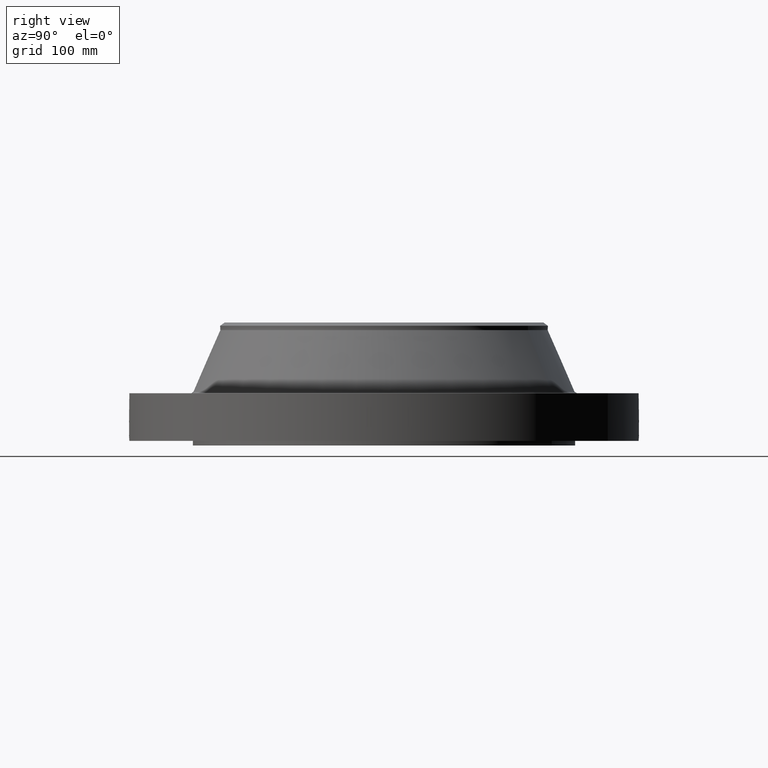
[diagram: clean part render]
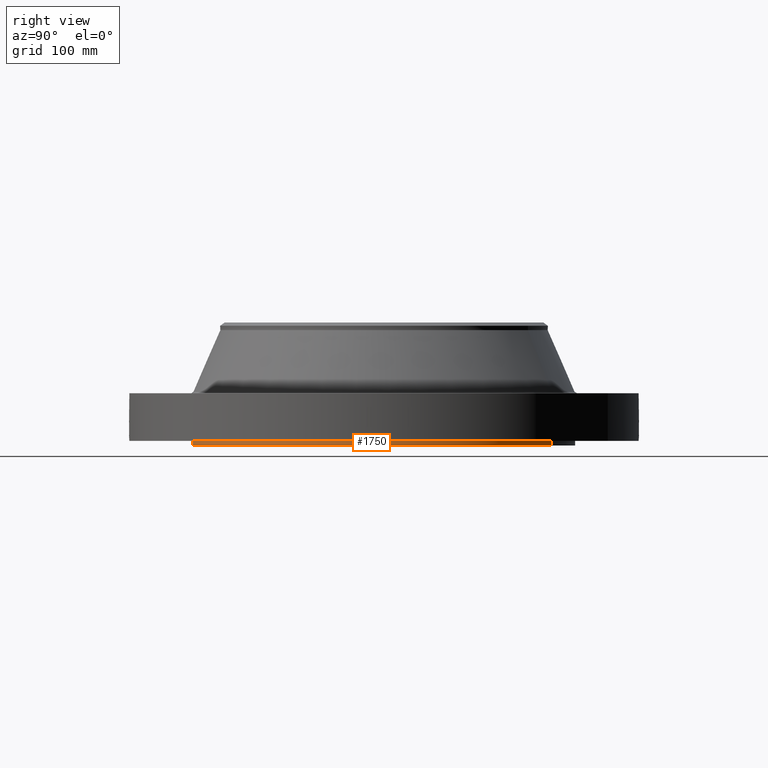
[diagram: same view with one face highlighted and labeled with its STEP entity id]
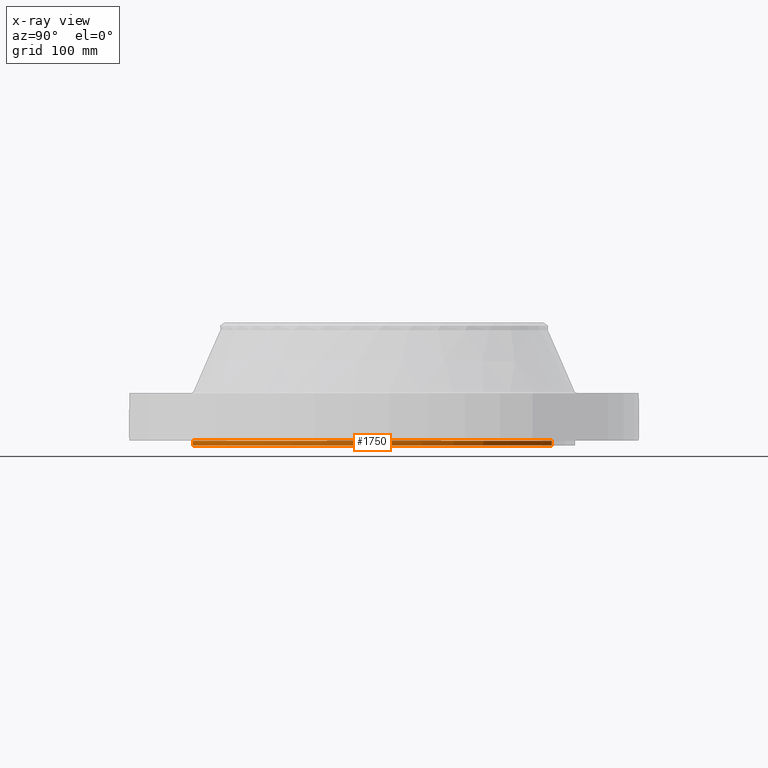
[diagram: x-ray of the same camera — body ghosted, the highlighted face saturated]
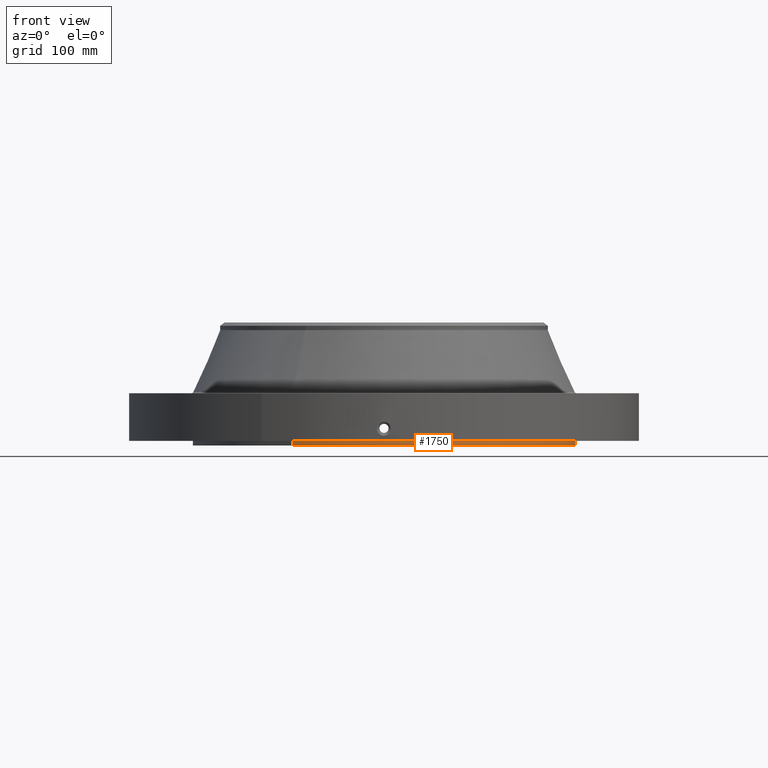
[diagram: same view with one face highlighted and labeled with its STEP entity id]
A machine part, right view. The second image highlights one B-rep face of the part: STEP entity #1750.
The next image is the same camera in x-ray: the body ghosted, the highlighted face saturated — about 0% of this face is hidden behind the body in this view.
A second angle (front view) of the same face is appended — the face is thin or edge-on in the first view.
In plain terms, the highlighted cylindrical surface (partial cylindrical patch) has radius 266.7 mm, axis along (0, 0, -1).
Its self-contained STEP definition (entity closure, byte-faithful):
#250=AXIS2_PLACEMENT_3D('Circle Axis2P3D',#248,#249,$) ;
#1723=AXIS2_PLACEMENT_3D('Cylinder Axis2P3D',#1720,#1721,#1722) ;
#1727=AXIS2_PLACEMENT_3D('Circle Axis2P3D',#1725,#1726,$) ;
#248=CARTESIAN_POINT('Axis2P3D Location',(0.,0.,0.250000000001)) ;
#252=CARTESIAN_POINT('Vertex',(5.03396815536,9.21461689989,0.250000000001)) ;
#254=CARTESIAN_POINT('Vertex',(-5.03396815536,-9.21461689989,0.250000000001)) ;
#1720=CARTESIAN_POINT('Axis2P3D Location',(0.,0.,3.37500000001)) ;
#1725=CARTESIAN_POINT('Axis2P3D Location',(0.,0.,1.1189649382E-015)) ;
#1729=CARTESIAN_POINT('Vertex',(5.03396815536,9.21461689989,1.67844740731E-015)) ;
#1731=CARTESIAN_POINT('Vertex',(-5.03396815536,-9.21461689989,1.67844740731E-015)) ;
#1734=CARTESIAN_POINT('Line Origine',(5.03396815536,9.21461689989,0.125000000001)) ;
#1739=CARTESIAN_POINT('Line Origine',(-5.03396815536,-9.21461689989,0.125000000001)) ;
#249=DIRECTION('Axis2P3D Direction',(0.,0.,-0.0393700787402)) ;
#1721=DIRECTION('Axis2P3D Direction',(0.,0.,-0.0393700787402)) ;
#1722=DIRECTION('Axis2P3D XDirection',(-0.0188750212049,-0.0345504945626,0.)) ;
#1726=DIRECTION('Axis2P3D Direction',(0.,0.,-0.0393700787402)) ;
#1735=DIRECTION('Vector Direction',(0.,0.,-0.0393700787402)) ;
#1740=DIRECTION('Vector Direction',(0.,0.,-0.0393700787402)) ;
#1736=VECTOR('Line Direction',#1735,0.0393700787402) ;
#1741=VECTOR('Line Direction',#1740,0.0393700787402) ;
#1745=ORIENTED_EDGE('',*,*,#1733,.F.) ;
#1746=ORIENTED_EDGE('',*,*,#1738,.T.) ;
#1747=ORIENTED_EDGE('',*,*,#256,.T.) ;
#1748=ORIENTED_EDGE('',*,*,#1743,.F.) ;
#1750=ADVANCED_FACE('PartBody',(#1749),#1724,.T.) ;
#251=CIRCLE('generated circle',#250,10.5) ;
#1728=CIRCLE('generated circle',#1727,10.5) ;
#1724=CYLINDRICAL_SURFACE('generated cylinder',#1723,10.5) ;
#256=EDGE_CURVE('',#253,#255,#251,.T.) ;
#1733=EDGE_CURVE('',#1730,#1732,#1728,.T.) ;
#1738=EDGE_CURVE('',#1730,#253,#1737,.F.) ;
#1743=EDGE_CURVE('',#1732,#255,#1742,.F.) ;
#1744=EDGE_LOOP('',(#1745,#1746,#1747,#1748)) ;
#1749=FACE_OUTER_BOUND('',#1744,.T.) ;
#1737=LINE('Line',#1734,#1736) ;
#1742=LINE('Line',#1739,#1741) ;
#253=VERTEX_POINT('',#252) ;
#255=VERTEX_POINT('',#254) ;
#1730=VERTEX_POINT('',#1729) ;
#1732=VERTEX_POINT('',#1731) ;